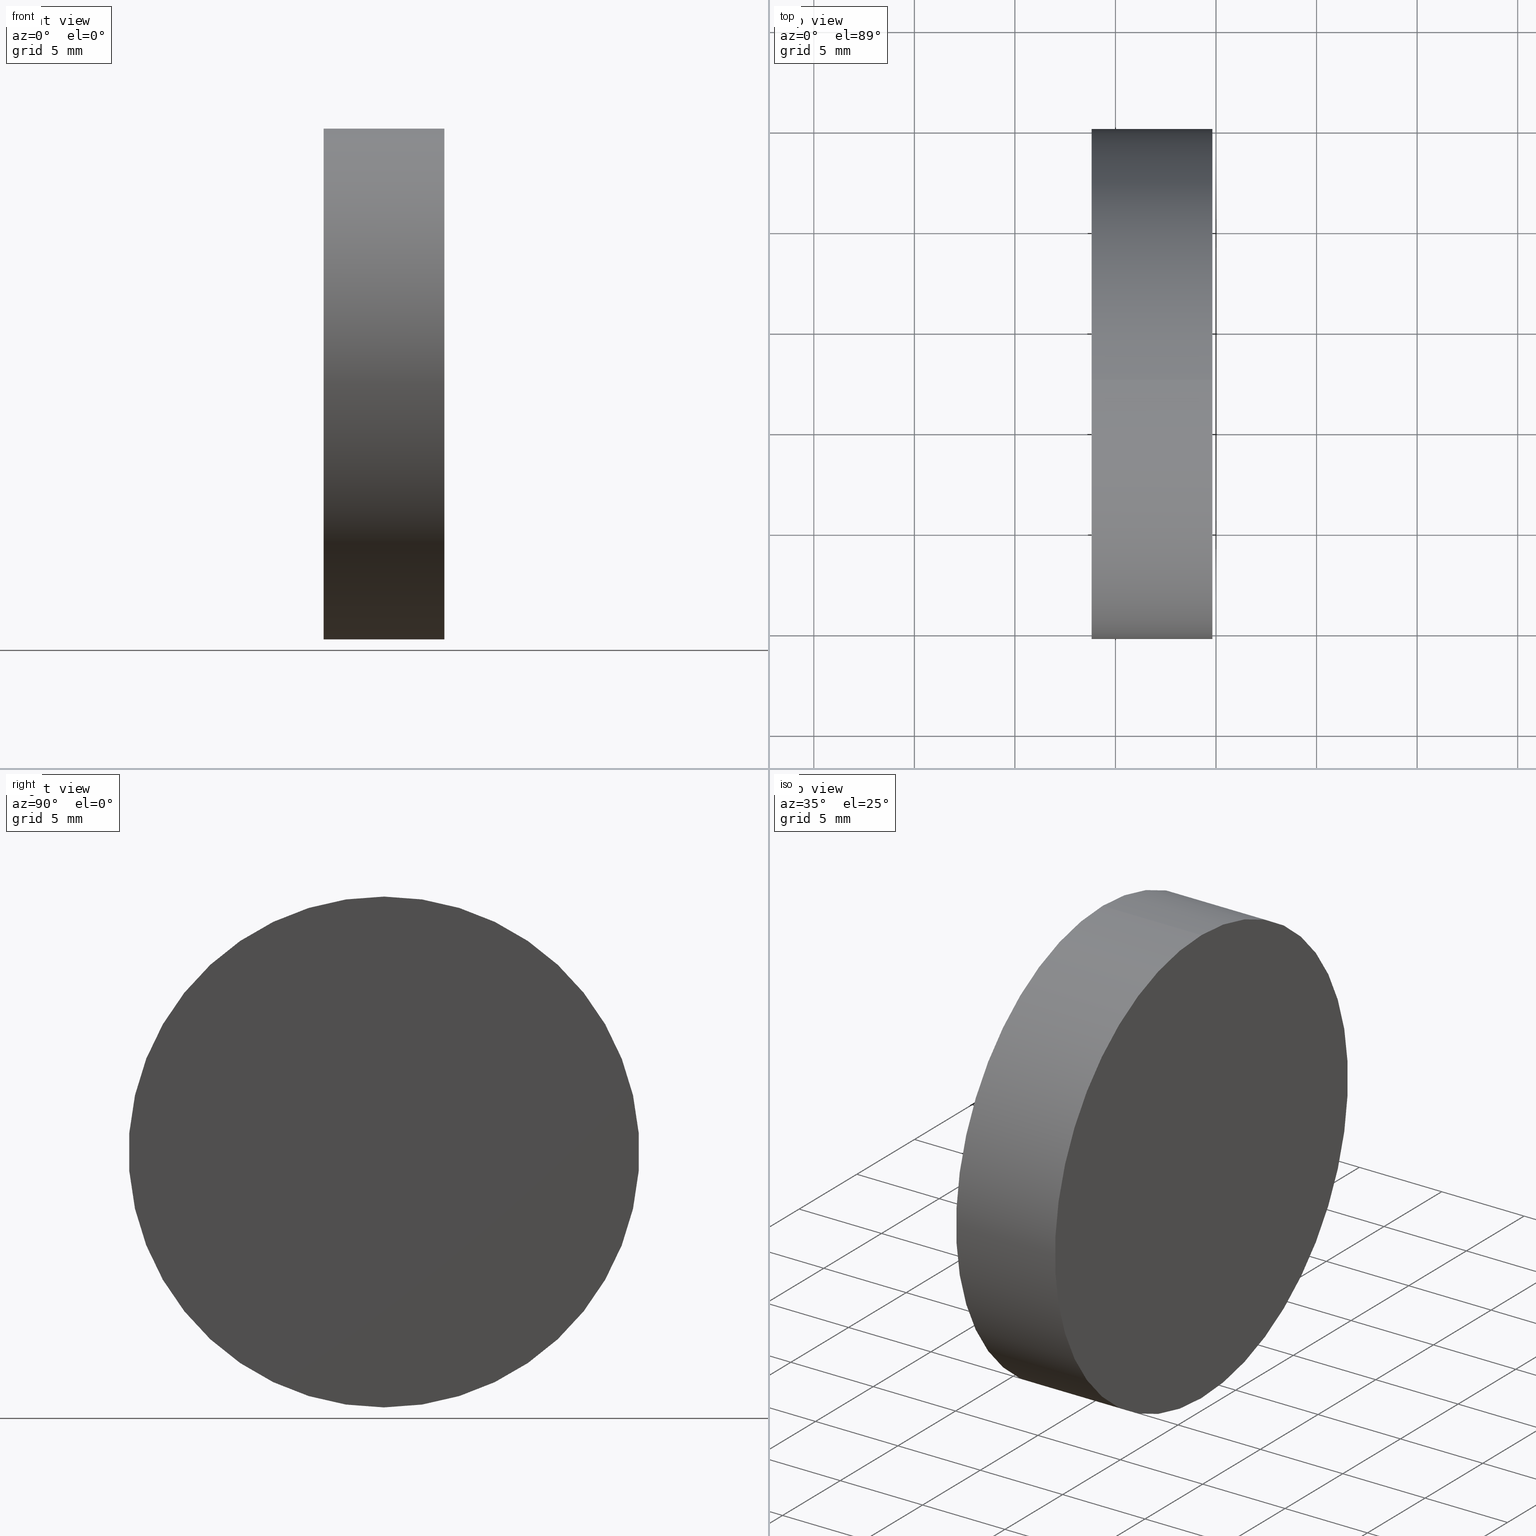
[diagram: canonical four-view strip — front | top / right | iso, engineering-drawing reading convention]
A machine part, canonical four-view strip (front | top / right | iso — engineering-drawing reading convention). The complete STEP part file that produces these views, byte-faithful:
ISO-10303-21;
HEADER;
FILE_DESCRIPTION (( 'STEP AP214' ),
    '1' );
FILE_NAME ('432000.STEP',
    '2019-08-26T02:22:04',
    ( 'user' ),
    ( '΢���й�' ),
    'SwSTEP 2.0',
    'SolidWorks 2016',
    '' );
FILE_SCHEMA (( 'AUTOMOTIVE_DESIGN' ));
ENDSEC;

DATA;
#1 = EDGE_LOOP ( 'NONE', ( #56, #121 ) ) ;
#2 = APPLICATION_PROTOCOL_DEFINITION ( 'draft international standard', 'automotive_design', 1998, #82 ) ;
#3 = COLOUR_RGB ( '',1.000000000000000000, 1.000000000000000000, 1.000000000000000000 ) ;
#4 =( LENGTH_UNIT ( ) NAMED_UNIT ( * ) SI_UNIT ( .MILLI., .METRE. ) );
#5 =( LENGTH_UNIT ( ) NAMED_UNIT ( * ) SI_UNIT ( .MILLI., .METRE. ) );
#6 = CARTESIAN_POINT ( 'NONE',  ( 274.8168258709342800, 77.29317934901541800, 12.70000000000000300 ) ) ;
#7 = ADVANCED_FACE ( 'NONE', ( #15 ), #136, .F. ) ;
#8 = ORIENTED_EDGE ( 'NONE', *, *, #126, .F. ) ;
#9 = ORIENTED_EDGE ( 'NONE', *, *, #129, .F. ) ;
#10 = ORIENTED_EDGE ( 'NONE', *, *, #119, .F. ) ;
#11 = DIRECTION ( 'NONE',  ( 0.0000000000000000000, 0.0000000000000000000, 1.000000000000000000 ) ) ;
#12 = LINE ( 'NONE', #40, #94 ) ;
#13 = CARTESIAN_POINT ( 'NONE',  ( 263.0932749704859900, 77.29317934901541800, 0.0000000000000000000 ) ) ;
#14 = CARTESIAN_POINT ( 'NONE',  ( 274.8168258709342800, 77.29317934901541800, 0.0000000000000000000 ) ) ;
#15 = FACE_OUTER_BOUND ( 'NONE', #25, .T. ) ;
#16 = DIRECTION ( 'NONE',  ( -1.000000000000000000, -0.0000000000000000000, -0.0000000000000000000 ) ) ;
#17 = LINE ( 'NONE', #79, #39 ) ;
#18 = DIRECTION ( 'NONE',  ( 0.0000000000000000000, 0.0000000000000000000, 1.000000000000000000 ) ) ;
#19 = ADVANCED_FACE ( 'NONE', ( #101 ), #127, .F. ) ;
#20 = CIRCLE ( 'NONE', #73, 12.70000000000000300 ) ;
#21 = CARTESIAN_POINT ( 'NONE',  ( 274.8168258709342800, 77.29317934901541800, 0.0000000000000000000 ) ) ;
#22 =( NAMED_UNIT ( * ) SI_UNIT ( $, .STERADIAN. ) SOLID_ANGLE_UNIT ( ) );
#23 = COLOUR_RGB ( '',1.000000000000000000, 1.000000000000000000, 1.000000000000000000 ) ;
#24 = CARTESIAN_POINT ( 'NONE',  ( 263.0932749704859900, 77.29317934901541800, 0.0000000000000000000 ) ) ;
#25 = EDGE_LOOP ( 'NONE', ( #62, #59 ) ) ;
#26 = CARTESIAN_POINT ( 'NONE',  ( 268.8168258709342200, 77.29317934901541800, -12.70000000000000300 ) ) ;
#27 =( LENGTH_UNIT ( ) NAMED_UNIT ( * ) SI_UNIT ( .MILLI., .METRE. ) );
#28 =( NAMED_UNIT ( * ) PLANE_ANGLE_UNIT ( ) SI_UNIT ( $, .RADIAN. ) );
#29 = DIRECTION ( 'NONE',  ( -1.000000000000000000, -0.0000000000000000000, -0.0000000000000000000 ) ) ;
#30 = FILL_AREA_STYLE_COLOUR ( '', #3 ) ;
#31 = VERTEX_POINT ( 'NONE', #57 ) ;
#32 = SHAPE_DEFINITION_REPRESENTATION ( #61, #113 ) ;
#33 = DIRECTION ( 'NONE',  ( -1.000000000000000000, 0.0000000000000000000, -0.0000000000000000000 ) ) ;
#34 = ORIENTED_EDGE ( 'NONE', *, *, #126, .T. ) ;
#35 = PRESENTATION_LAYER_ASSIGNMENT (  '', '', ( #80 ) ) ;
#36 = ORIENTED_EDGE ( 'NONE', *, *, #51, .F. ) ;
#37 = FACE_OUTER_BOUND ( 'NONE', #91, .T. ) ;
#38 = PRODUCT_DEFINITION_FORMATION_WITH_SPECIFIED_SOURCE ( '�κ�', '', #90, .NOT_KNOWN. ) ;
#39 = VECTOR ( 'NONE', #109, 1000.000000000000000 ) ;
#40 = CARTESIAN_POINT ( 'NONE',  ( 263.0932749704859900, 77.29317934901541800, -12.70000000000000300 ) ) ;
#41 = SURFACE_SIDE_STYLE ('',( #72 ) ) ;
#42 = SURFACE_STYLE_USAGE ( .BOTH. , #55 ) ;
#43 =( NAMED_UNIT ( * ) SI_UNIT ( $, .STERADIAN. ) SOLID_ANGLE_UNIT ( ) );
#44 = APPLICATION_PROTOCOL_DEFINITION ( 'draft international standard', 'automotive_design', 1998, #135 ) ;
#45 = UNCERTAINTY_MEASURE_WITH_UNIT (LENGTH_MEASURE( 1.000000000000000100E-005 ), #27, 'distance_accuracy_value', 'NONE');
#46 = DIRECTION ( 'NONE',  ( -0.0000000000000000000, 0.0000000000000000000, 1.000000000000000000 ) ) ;
#47 = CARTESIAN_POINT ( 'NONE',  ( 274.8168258709342800, 77.29317934901541800, 0.0000000000000000000 ) ) ;
#48 = PRODUCT_RELATED_PRODUCT_CATEGORY ( 'part', '', ( #90 ) ) ;
#49 = CYLINDRICAL_SURFACE ( 'NONE', #77, 12.70000000000000300 ) ;
#50 = SURFACE_STYLE_FILL_AREA ( #124 ) ;
#51 = EDGE_CURVE ( 'NONE', #117, #93, #20, .T. ) ;
#52 = ORIENTED_EDGE ( 'NONE', *, *, #118, .T. ) ;
#53 = DIRECTION ( 'NONE',  ( 0.0000000000000000000, 0.0000000000000000000, 1.000000000000000000 ) ) ;
#54 = FILL_AREA_STYLE_COLOUR ( '', #23 ) ;
#55 = SURFACE_SIDE_STYLE ('',( #50 ) ) ;
#56 = ORIENTED_EDGE ( 'NONE', *, *, #139, .F. ) ;
#57 = CARTESIAN_POINT ( 'NONE',  ( 274.8168258709342800, 77.29317934901541800, -12.70000000000000300 ) ) ;
#58 =( GEOMETRIC_REPRESENTATION_CONTEXT ( 3 ) GLOBAL_UNCERTAINTY_ASSIGNED_CONTEXT ( ( #45 ) ) GLOBAL_UNIT_ASSIGNED_CONTEXT ( ( #27, #81, #22 ) ) REPRESENTATION_CONTEXT ( 'NONE', 'WORKASPACE' ) );
#59 = ORIENTED_EDGE ( 'NONE', *, *, #51, .T. ) ;
#60 = ADVANCED_FACE ( 'NONE', ( #131 ), #49, .T. ) ;
#61 = PRODUCT_DEFINITION_SHAPE ( 'NONE', 'NONE',  #114 ) ;
#62 = ORIENTED_EDGE ( 'NONE', *, *, #129, .T. ) ;
#63 = MECHANICAL_DESIGN_GEOMETRIC_PRESENTATION_REPRESENTATION (  '', ( #74 ), #132 ) ;
#64 = VERTEX_POINT ( 'NONE', #6 ) ;
#65 = DIRECTION ( 'NONE',  ( 0.0000000000000000000, 0.0000000000000000000, 1.000000000000000000 ) ) ;
#66 = PRODUCT_CONTEXT ( 'NONE', #135, 'mechanical' ) ;
#67 = CARTESIAN_POINT ( 'NONE',  ( 268.8168258709342200, 77.29317934901541800, 0.0000000000000000000 ) ) ;
#68 = DIRECTION ( 'NONE',  ( -1.000000000000000000, -0.0000000000000000000, -0.0000000000000000000 ) ) ;
#69 = CLOSED_SHELL ( 'NONE', ( #104, #19, #60, #7 ) ) ;
#70 = PRESENTATION_LAYER_ASSIGNMENT (  '', '', ( #74 ) ) ;
#71 = CYLINDRICAL_SURFACE ( 'NONE', #115, 12.70000000000000300 ) ;
#72 = SURFACE_STYLE_FILL_AREA ( #111 ) ;
#73 = AXIS2_PLACEMENT_3D ( 'NONE', #76, #89, #18 ) ;
#74 = STYLED_ITEM ( 'NONE', ( #116 ), #113 ) ;
#75 = DIRECTION ( 'NONE',  ( 0.0000000000000000000, 0.0000000000000000000, 1.000000000000000000 ) ) ;
#76 = CARTESIAN_POINT ( 'NONE',  ( 268.8168258709342200, 77.29317934901541800, 0.0000000000000000000 ) ) ;
#77 = AXIS2_PLACEMENT_3D ( 'NONE', #24, #16, #100 ) ;
#78 = UNCERTAINTY_MEASURE_WITH_UNIT (LENGTH_MEASURE( 1.000000000000000100E-005 ), #4, 'distance_accuracy_value', 'NONE');
#79 = CARTESIAN_POINT ( 'NONE',  ( 263.0932749704859900, 77.29317934901541800, 12.70000000000000300 ) ) ;
#80 = STYLED_ITEM ( 'NONE', ( #107 ), #92 ) ;
#81 =( NAMED_UNIT ( * ) PLANE_ANGLE_UNIT ( ) SI_UNIT ( $, .RADIAN. ) );
#82 = APPLICATION_CONTEXT ( 'automotive_design' ) ;
#83 = DIRECTION ( 'NONE',  ( -1.000000000000000000, -0.0000000000000000000, -0.0000000000000000000 ) ) ;
#84 = DIRECTION ( 'NONE',  ( 0.0000000000000000000, 0.0000000000000000000, -1.000000000000000000 ) ) ;
#85 = ORIENTED_EDGE ( 'NONE', *, *, #139, .T. ) ;
#86 = DIRECTION ( 'NONE',  ( 1.000000000000000000, 0.0000000000000000000, 0.0000000000000000000 ) ) ;
#87 =( GEOMETRIC_REPRESENTATION_CONTEXT ( 3 ) GLOBAL_UNCERTAINTY_ASSIGNED_CONTEXT ( ( #138 ) ) GLOBAL_UNIT_ASSIGNED_CONTEXT ( ( #5, #28, #123 ) ) REPRESENTATION_CONTEXT ( 'NONE', 'WORKASPACE' ) );
#88 = EDGE_LOOP ( 'NONE', ( #10, #52, #34, #36 ) ) ;
#89 = DIRECTION ( 'NONE',  ( -1.000000000000000000, -0.0000000000000000000, -0.0000000000000000000 ) ) ;
#90 = PRODUCT ( '432000', '432000', '', ( #66 ) ) ;
#91 = EDGE_LOOP ( 'NONE', ( #85, #125, #9, #8 ) ) ;
#92 = MANIFOLD_SOLID_BREP ( '��ת1', #69 ) ;
#93 = VERTEX_POINT ( 'NONE', #102 ) ;
#94 = VECTOR ( 'NONE', #133, 1000.000000000000000 ) ;
#95 = AXIS2_PLACEMENT_3D ( 'NONE', #14, #29, #75 ) ;
#96 = DIRECTION ( 'NONE',  ( -1.000000000000000000, -0.0000000000000000000, -0.0000000000000000000 ) ) ;
#97 = SURFACE_STYLE_USAGE ( .BOTH. , #41 ) ;
#98 = DIRECTION ( 'NONE',  ( 0.0000000000000000000, 0.0000000000000000000, 1.000000000000000000 ) ) ;
#99 = CARTESIAN_POINT ( 'NONE',  ( 268.8168258709342200, 77.29317934901541800, 0.0000000000000000000 ) ) ;
#100 = DIRECTION ( 'NONE',  ( 0.0000000000000000000, 0.0000000000000000000, 1.000000000000000000 ) ) ;
#101 = FACE_OUTER_BOUND ( 'NONE', #1, .T. ) ;
#102 = CARTESIAN_POINT ( 'NONE',  ( 268.8168258709342200, 77.29317934901541800, 12.70000000000000300 ) ) ;
#103 = AXIS2_PLACEMENT_3D ( 'NONE', #47, #33, #46 ) ;
#104 = ADVANCED_FACE ( 'NONE', ( #37 ), #71, .T. ) ;
#105 = AXIS2_PLACEMENT_3D ( 'NONE', #67, #83, #98 ) ;
#106 = PRODUCT_DEFINITION_CONTEXT ( 'detailed design', #82, 'design' ) ;
#107 = PRESENTATION_STYLE_ASSIGNMENT (( #97 ) ) ;
#108 = CIRCLE ( 'NONE', #105, 12.70000000000000300 ) ;
#109 = DIRECTION ( 'NONE',  ( -1.000000000000000000, -0.0000000000000000000, -0.0000000000000000000 ) ) ;
#110 = AXIS2_PLACEMENT_3D ( 'NONE', #99, #86, #84 ) ;
#111 = FILL_AREA_STYLE ('',( #54 ) ) ;
#112 =( NAMED_UNIT ( * ) PLANE_ANGLE_UNIT ( ) SI_UNIT ( $, .RADIAN. ) );
#113 = ADVANCED_BREP_SHAPE_REPRESENTATION ( '432000', ( #92, #130 ), #87 ) ;
#114 = PRODUCT_DEFINITION ( 'δ֪', '', #38, #106 ) ;
#115 = AXIS2_PLACEMENT_3D ( 'NONE', #13, #68, #65 ) ;
#116 = PRESENTATION_STYLE_ASSIGNMENT (( #42 ) ) ;
#117 = VERTEX_POINT ( 'NONE', #26 ) ;
#118 = EDGE_CURVE ( 'NONE', #31, #64, #128, .T. ) ;
#119 = EDGE_CURVE ( 'NONE', #31, #117, #12, .T. ) ;
#120 = CARTESIAN_POINT ( 'NONE',  ( 0.0000000000000000000, 0.0000000000000000000, 0.0000000000000000000 ) ) ;
#121 = ORIENTED_EDGE ( 'NONE', *, *, #118, .F. ) ;
#122 = AXIS2_PLACEMENT_3D ( 'NONE', #21, #96, #11 ) ;
#123 =( NAMED_UNIT ( * ) SI_UNIT ( $, .STERADIAN. ) SOLID_ANGLE_UNIT ( ) );
#124 = FILL_AREA_STYLE ('',( #30 ) ) ;
#125 = ORIENTED_EDGE ( 'NONE', *, *, #119, .T. ) ;
#126 = EDGE_CURVE ( 'NONE', #64, #93, #17, .T. ) ;
#127 = PLANE ( 'NONE',  #103 ) ;
#128 = CIRCLE ( 'NONE', #122, 12.70000000000000300 ) ;
#129 = EDGE_CURVE ( 'NONE', #93, #117, #108, .T. ) ;
#130 = AXIS2_PLACEMENT_3D ( 'NONE', #120, #53, #134 ) ;
#131 = FACE_OUTER_BOUND ( 'NONE', #88, .T. ) ;
#132 =( GEOMETRIC_REPRESENTATION_CONTEXT ( 3 ) GLOBAL_UNCERTAINTY_ASSIGNED_CONTEXT ( ( #78 ) ) GLOBAL_UNIT_ASSIGNED_CONTEXT ( ( #4, #112, #43 ) ) REPRESENTATION_CONTEXT ( 'NONE', 'WORKASPACE' ) );
#133 = DIRECTION ( 'NONE',  ( -1.000000000000000000, -0.0000000000000000000, -0.0000000000000000000 ) ) ;
#134 = DIRECTION ( 'NONE',  ( 1.000000000000000000, 0.0000000000000000000, 0.0000000000000000000 ) ) ;
#135 = APPLICATION_CONTEXT ( 'automotive_design' ) ;
#136 = PLANE ( 'NONE',  #110 ) ;
#137 = CIRCLE ( 'NONE', #95, 12.70000000000000300 ) ;
#138 = UNCERTAINTY_MEASURE_WITH_UNIT (LENGTH_MEASURE( 1.000000000000000100E-005 ), #5, 'distance_accuracy_value', 'NONE');
#139 = EDGE_CURVE ( 'NONE', #64, #31, #137, .T. ) ;
#140 = MECHANICAL_DESIGN_GEOMETRIC_PRESENTATION_REPRESENTATION (  '', ( #80 ), #58 ) ;
ENDSEC;
END-ISO-10303-21;
